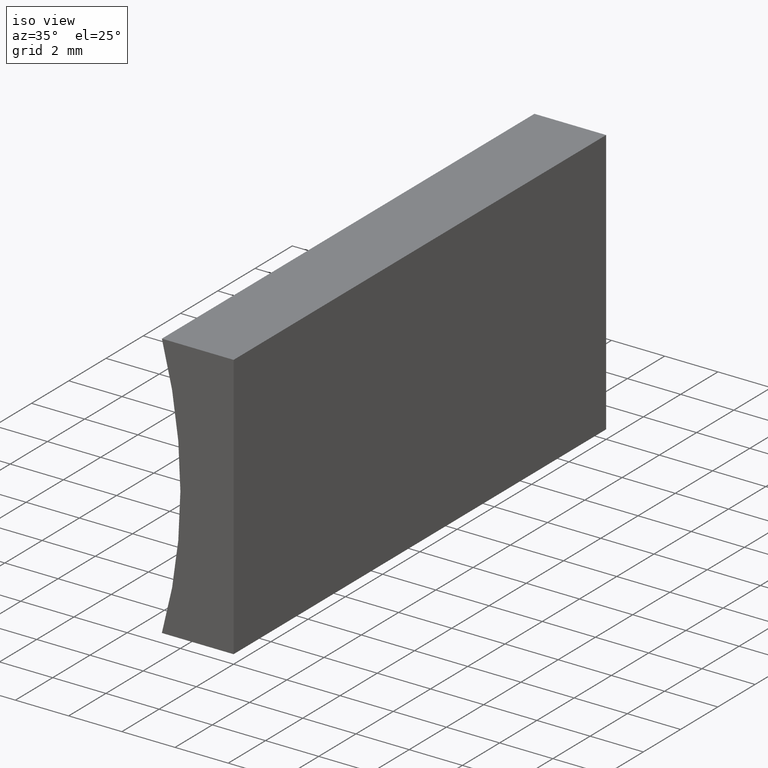
[diagram: clean part render]
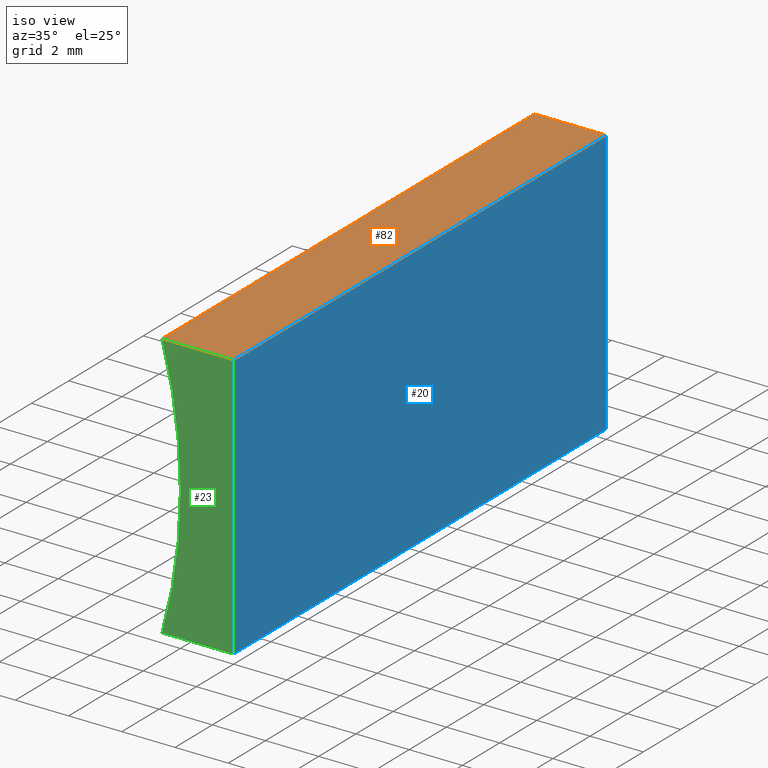
[diagram: same view with three faces highlighted in distinct colors, each labeled with its STEP entity id]
A machine part, iso view with three faces highlighted in distinct colors.
Their STEP definitions:

[orange] entity #82 — the highlighted planar face has unit normal (0, 0, -1).
#1 = AXIS2_PLACEMENT_3D ( 'NONE', #139, #195, #110 ) ;
#9 = DIRECTION ( 'NONE',  ( 1.000000000000000000, -0.0000000000000000000, 6.435587152311169000E-016 ) ) ;
#10 = ORIENTED_EDGE ( 'NONE', *, *, #28, .T. ) ;
#14 = VERTEX_POINT ( 'NONE', #193 ) ;
#28 = EDGE_CURVE ( 'NONE', #46, #14, #98, .T. ) ;
#41 = LINE ( 'NONE', #109, #190 ) ;
#46 = VERTEX_POINT ( 'NONE', #122 ) ;
#49 = EDGE_CURVE ( 'NONE', #189, #166, #149, .T. ) ;
#50 = LINE ( 'NONE', #112, #59 ) ;
#56 = CARTESIAN_POINT ( 'NONE',  ( 6.123233995736766300E-016, 20.00000000000000000, 10.00000000000000000 ) ) ;
#59 = VECTOR ( 'NONE', #134, 1000.000000000000000 ) ;
#65 = ORIENTED_EDGE ( 'NONE', *, *, #141, .F. ) ;
#82 = ADVANCED_FACE ( 'NONE', ( #160 ), #118, .F. ) ;
#98 = LINE ( 'NONE', #108, #202 ) ;
#99 = CARTESIAN_POINT ( 'NONE',  ( 6.123233995736766300E-016, 20.00000000000000000, 10.00000000000000000 ) ) ;
#108 = CARTESIAN_POINT ( 'NONE',  ( -2.695517028860105600, 20.00000000000000000, 9.999999999999998200 ) ) ;
#109 = CARTESIAN_POINT ( 'NONE',  ( 6.123233995736766300E-016, 0.0000000000000000000, 10.00000000000000000 ) ) ;
#110 = DIRECTION ( 'NONE',  ( -1.000000000000000000, 0.0000000000000000000, -6.435587152311169000E-016 ) ) ;
#112 = CARTESIAN_POINT ( 'NONE',  ( 6.123233995736766300E-016, 20.00000000000000000, 10.00000000000000000 ) ) ;
#116 = DIRECTION ( 'NONE',  ( -0.0000000000000000000, -1.000000000000000000, -0.0000000000000000000 ) ) ;
#118 = PLANE ( 'NONE',  #1 ) ;
#119 = EDGE_CURVE ( 'NONE', #14, #166, #41, .T. ) ;
#122 = CARTESIAN_POINT ( 'NONE',  ( -2.695517028860105600, 20.00000000000000000, 9.999999999999998200 ) ) ;
#134 = DIRECTION ( 'NONE',  ( 1.000000000000000000, -0.0000000000000000000, 6.435587152311169000E-016 ) ) ;
#138 = CARTESIAN_POINT ( 'NONE',  ( 6.123233995736766300E-016, 0.0000000000000000000, 10.00000000000000000 ) ) ;
#139 = CARTESIAN_POINT ( 'NONE',  ( 6.123233995736766300E-016, 20.00000000000000000, 10.00000000000000000 ) ) ;
#141 = EDGE_CURVE ( 'NONE', #46, #189, #50, .T. ) ;
#149 = LINE ( 'NONE', #99, #178 ) ;
#160 = FACE_OUTER_BOUND ( 'NONE', #184, .T. ) ;
#161 = ORIENTED_EDGE ( 'NONE', *, *, #119, .T. ) ;
#166 = VERTEX_POINT ( 'NONE', #138 ) ;
#170 = DIRECTION ( 'NONE',  ( -0.0000000000000000000, -1.000000000000000000, -0.0000000000000000000 ) ) ;
#178 = VECTOR ( 'NONE', #116, 1000.000000000000000 ) ;
#184 = EDGE_LOOP ( 'NONE', ( #161, #200, #65, #10 ) ) ;
#189 = VERTEX_POINT ( 'NONE', #56 ) ;
#190 = VECTOR ( 'NONE', #9, 1000.000000000000000 ) ;
#193 = CARTESIAN_POINT ( 'NONE',  ( -2.695517028860105600, 0.0000000000000000000, 9.999999999999998200 ) ) ;
#195 = DIRECTION ( 'NONE',  ( 6.435587152311169000E-016, 0.0000000000000000000, -1.000000000000000000 ) ) ;
#200 = ORIENTED_EDGE ( 'NONE', *, *, #49, .F. ) ;
#202 = VECTOR ( 'NONE', #170, 1000.000000000000000 ) ;

[blue] entity #20 — the highlighted planar face has unit normal (-1, 0, 0).
#8 = EDGE_CURVE ( 'NONE', #166, #131, #137, .T. ) ;
#11 = CARTESIAN_POINT ( 'NONE',  ( 0.0000000000000000000, 20.00000000000000000, 0.0000000000000000000 ) ) ;
#12 = AXIS2_PLACEMENT_3D ( 'NONE', #76, #92, #71 ) ;
#20 = ADVANCED_FACE ( 'NONE', ( #198 ), #31, .F. ) ;
#31 = PLANE ( 'NONE',  #12 ) ;
#36 = EDGE_LOOP ( 'NONE', ( #79, #130, #106, #121 ) ) ;
#39 = CARTESIAN_POINT ( 'NONE',  ( 0.0000000000000000000, 0.0000000000000000000, 0.0000000000000000000 ) ) ;
#49 = EDGE_CURVE ( 'NONE', #189, #166, #149, .T. ) ;
#56 = CARTESIAN_POINT ( 'NONE',  ( 6.123233995736766300E-016, 20.00000000000000000, 10.00000000000000000 ) ) ;
#61 = EDGE_CURVE ( 'NONE', #159, #131, #126, .T. ) ;
#69 = LINE ( 'NONE', #81, #176 ) ;
#71 = DIRECTION ( 'NONE',  ( 6.123233995736766000E-017, 0.0000000000000000000, 1.000000000000000000 ) ) ;
#72 = CARTESIAN_POINT ( 'NONE',  ( 0.0000000000000000000, 20.00000000000000000, 0.0000000000000000000 ) ) ;
#76 = CARTESIAN_POINT ( 'NONE',  ( 0.0000000000000000000, 20.00000000000000000, 0.0000000000000000000 ) ) ;
#79 = ORIENTED_EDGE ( 'NONE', *, *, #8, .T. ) ;
#81 = CARTESIAN_POINT ( 'NONE',  ( 0.0000000000000000000, 20.00000000000000000, 0.0000000000000000000 ) ) ;
#88 = DIRECTION ( 'NONE',  ( -0.0000000000000000000, -1.000000000000000000, -0.0000000000000000000 ) ) ;
#90 = VECTOR ( 'NONE', #191, 1000.000000000000000 ) ;
#91 = VECTOR ( 'NONE', #88, 1000.000000000000000 ) ;
#92 = DIRECTION ( 'NONE',  ( -1.000000000000000000, 0.0000000000000000000, 6.123233995736766000E-017 ) ) ;
#99 = CARTESIAN_POINT ( 'NONE',  ( 6.123233995736766300E-016, 20.00000000000000000, 10.00000000000000000 ) ) ;
#103 = CARTESIAN_POINT ( 'NONE',  ( 0.0000000000000000000, 0.0000000000000000000, 0.0000000000000000000 ) ) ;
#104 = EDGE_CURVE ( 'NONE', #189, #159, #69, .T. ) ;
#106 = ORIENTED_EDGE ( 'NONE', *, *, #104, .F. ) ;
#116 = DIRECTION ( 'NONE',  ( -0.0000000000000000000, -1.000000000000000000, -0.0000000000000000000 ) ) ;
#121 = ORIENTED_EDGE ( 'NONE', *, *, #49, .T. ) ;
#126 = LINE ( 'NONE', #72, #91 ) ;
#130 = ORIENTED_EDGE ( 'NONE', *, *, #61, .F. ) ;
#131 = VERTEX_POINT ( 'NONE', #103 ) ;
#137 = LINE ( 'NONE', #39, #90 ) ;
#138 = CARTESIAN_POINT ( 'NONE',  ( 6.123233995736766300E-016, 0.0000000000000000000, 10.00000000000000000 ) ) ;
#149 = LINE ( 'NONE', #99, #178 ) ;
#159 = VERTEX_POINT ( 'NONE', #11 ) ;
#166 = VERTEX_POINT ( 'NONE', #138 ) ;
#169 = DIRECTION ( 'NONE',  ( -6.123233995736766000E-017, -0.0000000000000000000, -1.000000000000000000 ) ) ;
#176 = VECTOR ( 'NONE', #169, 1000.000000000000000 ) ;
#178 = VECTOR ( 'NONE', #116, 1000.000000000000000 ) ;
#189 = VERTEX_POINT ( 'NONE', #56 ) ;
#191 = DIRECTION ( 'NONE',  ( -6.123233995736766000E-017, -0.0000000000000000000, -1.000000000000000000 ) ) ;
#198 = FACE_OUTER_BOUND ( 'NONE', #36, .T. ) ;

[green] entity #23 — the highlighted planar face has unit normal (0, 1, 0).
#5 = DIRECTION ( 'NONE',  ( -1.000000000000000000, 0.0000000000000000000, 6.435587152311167000E-016 ) ) ;
#8 = EDGE_CURVE ( 'NONE', #166, #131, #137, .T. ) ;
#9 = DIRECTION ( 'NONE',  ( 1.000000000000000000, -0.0000000000000000000, 6.435587152311169000E-016 ) ) ;
#14 = VERTEX_POINT ( 'NONE', #193 ) ;
#21 = ORIENTED_EDGE ( 'NONE', *, *, #68, .F. ) ;
#23 = ADVANCED_FACE ( 'NONE', ( #87 ), #150, .F. ) ;
#37 = EDGE_CURVE ( 'NONE', #86, #14, #164, .T. ) ;
#39 = CARTESIAN_POINT ( 'NONE',  ( 0.0000000000000000000, 0.0000000000000000000, 0.0000000000000000000 ) ) ;
#41 = LINE ( 'NONE', #109, #190 ) ;
#42 = EDGE_LOOP ( 'NONE', ( #21, #143, #83, #196 ) ) ;
#57 = DIRECTION ( 'NONE',  ( 0.0000000000000000000, -0.0000000000000000000, 1.000000000000000000 ) ) ;
#62 = CARTESIAN_POINT ( 'NONE',  ( -20.31999999999999700, 0.0000000000000000000, 5.000000000000001800 ) ) ;
#68 = EDGE_CURVE ( 'NONE', #131, #86, #151, .T. ) ;
#83 = ORIENTED_EDGE ( 'NONE', *, *, #119, .F. ) ;
#86 = VERTEX_POINT ( 'NONE', #115 ) ;
#87 = FACE_OUTER_BOUND ( 'NONE', #42, .T. ) ;
#90 = VECTOR ( 'NONE', #191, 1000.000000000000000 ) ;
#97 = DIRECTION ( 'NONE',  ( 0.0000000000000000000, 1.000000000000000000, 0.0000000000000000000 ) ) ;
#102 = AXIS2_PLACEMENT_3D ( 'NONE', #174, #153, #199 ) ;
#103 = CARTESIAN_POINT ( 'NONE',  ( 0.0000000000000000000, 0.0000000000000000000, 0.0000000000000000000 ) ) ;
#109 = CARTESIAN_POINT ( 'NONE',  ( 6.123233995736766300E-016, 0.0000000000000000000, 10.00000000000000000 ) ) ;
#115 = CARTESIAN_POINT ( 'NONE',  ( -2.695517028860106900, 0.0000000000000000000, 1.734723475976807100E-015 ) ) ;
#119 = EDGE_CURVE ( 'NONE', #14, #166, #41, .T. ) ;
#125 = CARTESIAN_POINT ( 'NONE',  ( 0.0000000000000000000, 0.0000000000000000000, 0.0000000000000000000 ) ) ;
#131 = VERTEX_POINT ( 'NONE', #103 ) ;
#137 = LINE ( 'NONE', #39, #90 ) ;
#138 = CARTESIAN_POINT ( 'NONE',  ( 6.123233995736766300E-016, 0.0000000000000000000, 10.00000000000000000 ) ) ;
#143 = ORIENTED_EDGE ( 'NONE', *, *, #8, .F. ) ;
#150 = PLANE ( 'NONE',  #173 ) ;
#151 = LINE ( 'NONE', #125, #188 ) ;
#153 = DIRECTION ( 'NONE',  ( -0.0000000000000000000, -1.000000000000000000, -0.0000000000000000000 ) ) ;
#164 = CIRCLE ( 'NONE', #102, 18.32000000000000000 ) ;
#166 = VERTEX_POINT ( 'NONE', #138 ) ;
#173 = AXIS2_PLACEMENT_3D ( 'NONE', #62, #97, #57 ) ;
#174 = CARTESIAN_POINT ( 'NONE',  ( -20.31999999999999700, 0.0000000000000000000, 5.000000000000001800 ) ) ;
#188 = VECTOR ( 'NONE', #5, 1000.000000000000000 ) ;
#190 = VECTOR ( 'NONE', #9, 1000.000000000000000 ) ;
#191 = DIRECTION ( 'NONE',  ( -6.123233995736766000E-017, -0.0000000000000000000, -1.000000000000000000 ) ) ;
#193 = CARTESIAN_POINT ( 'NONE',  ( -2.695517028860105600, 0.0000000000000000000, 9.999999999999998200 ) ) ;
#196 = ORIENTED_EDGE ( 'NONE', *, *, #37, .F. ) ;
#199 = DIRECTION ( 'NONE',  ( 0.0000000000000000000, 0.0000000000000000000, 1.000000000000000000 ) ) ;